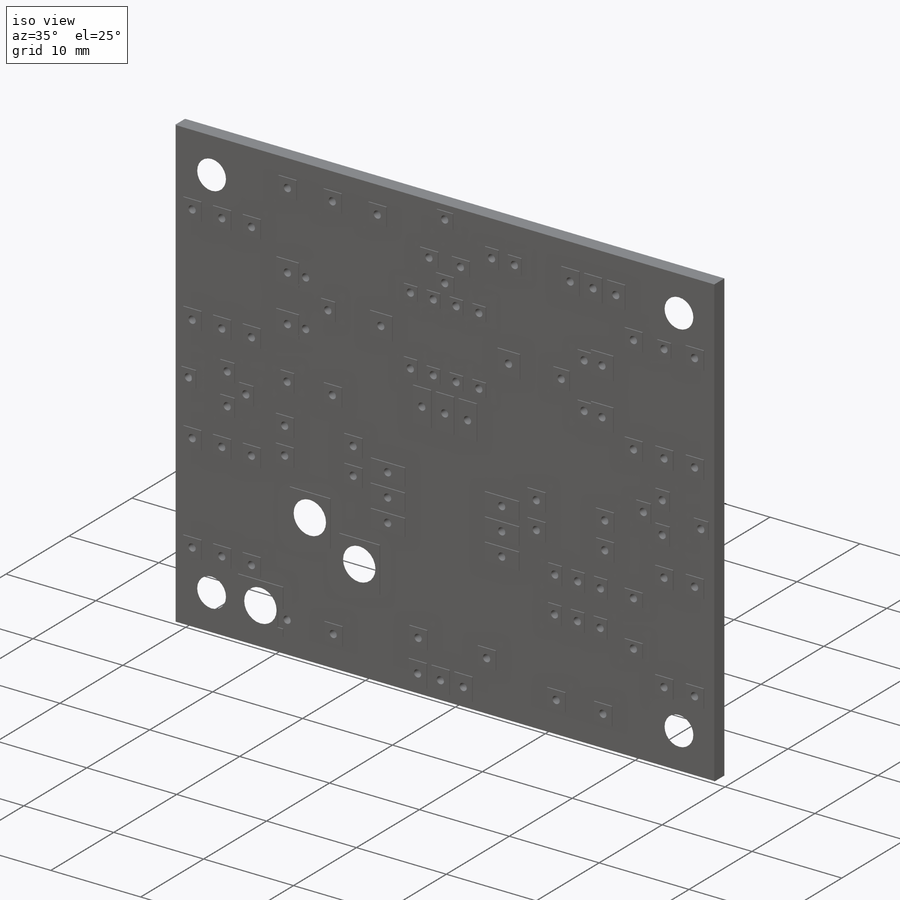
[diagram: iso view]
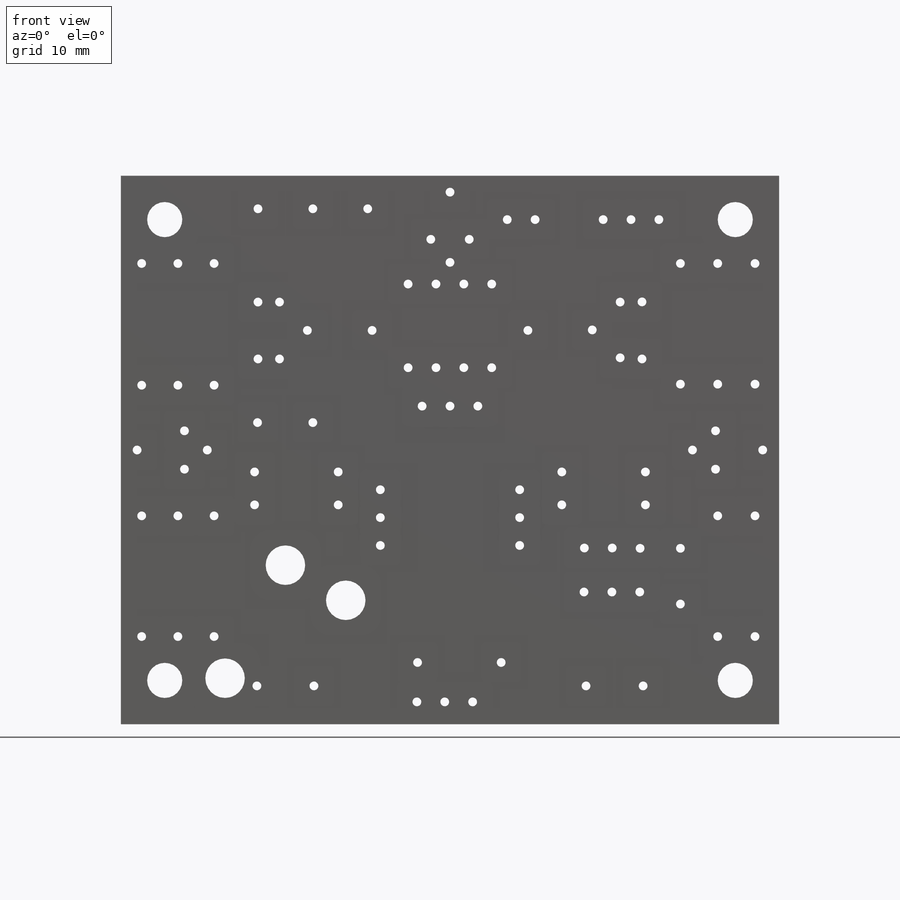
[diagram: front view]
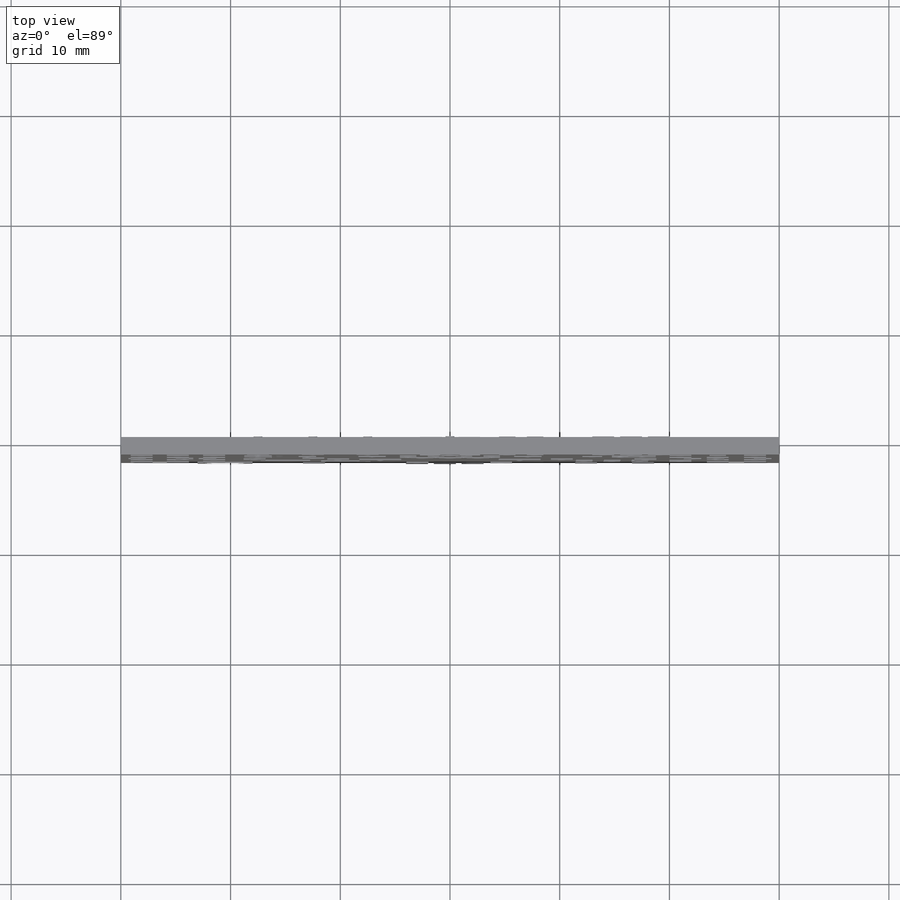
[diagram: top view]
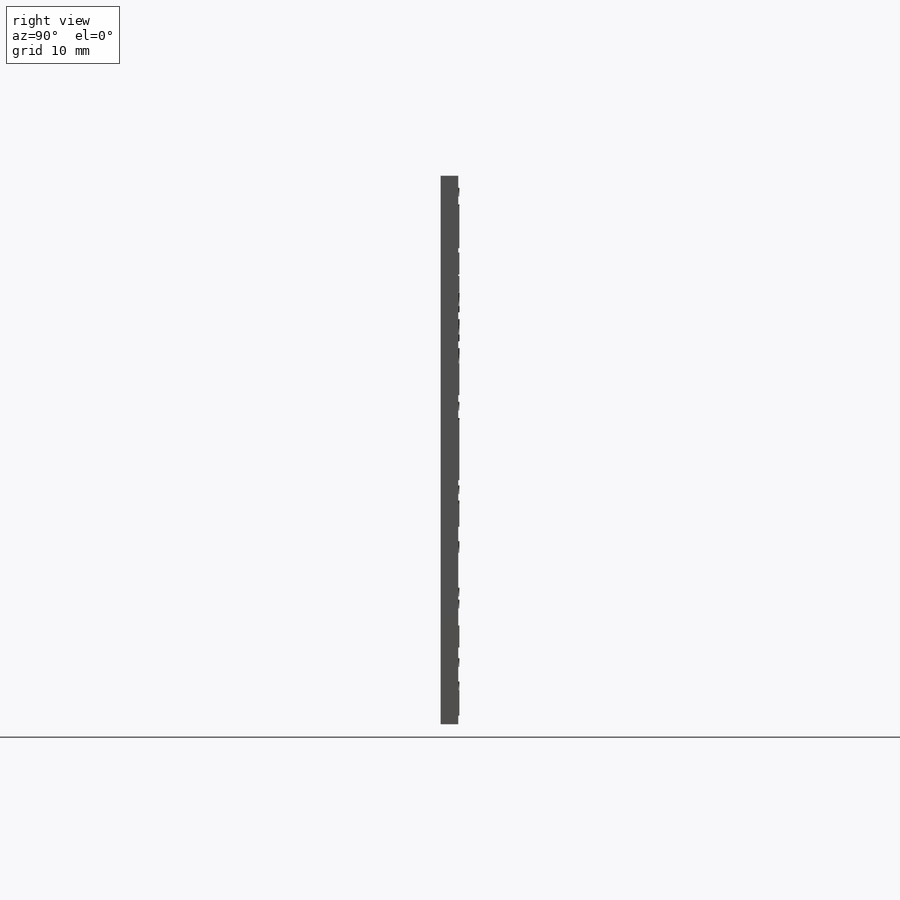
[diagram: right view]
SOLIDWORKS PART (.sldprt)
format: sldprt  version: not decoded by parser v0  size: 1,640,960 bytes
history: native  units: mm
features: sketch x6, cut_extrude x5, plane x3, material x1, extrude x1 (+8 scaffold rows collapsed)
feature tree (24):
  scaffold x8  (default folders/planes/origin — collapsed)
  material  "Matériau <non spécifié>"
  plane  "Plan de face"
  plane  "Plan de dessus"
  plane  "Plan de droite"
  sketch  "Esquisse1"  dims[D1=60.0mm D2=50.0mm]
  extrude  "Extrusion1"  Depth=1.7mm
  sketch  "Esquisse2"  dims[D1=1524.0mm]
  cut_extrude  "Extrusion4"  Depth=0.1mm
  sketch  "Esquisse5"  dims[c1.D1=0.8mm c1.D2=~0.891957mm c1.D3=~0.891957mm c2.D2=0.8mm]
  cut_extrude  "Extrusion2"  Depth=1.7mm
  sketch  "Esquisse7"  dims[D1=50.0mm]
  cut_extrude  "Extrusion6"  Depth=0.1mm
  sketch  "Esquisse8"  dims[D3=3.2mm D6=3.2mm D9=3.2mm D12=3.2mm D1=4.0mm D2=4.0mm D4=4.0mm D5=4.0mm D7=4.0mm D8=4.0mm D10=4.0mm D11=4.0mm]
  cut_extrude  "Enlèv. mat.-Extru.1"  [1 undecoded]
  sketch  "Esquisse9"  dims[D1=3.6mm D2=3.6mm D3=3.6mm]
  cut_extrude  "Enlèv. mat.-Extru.2"  [1 undecoded]
decode coverage: 10 of 12 modeling features carry decoded parameters
note: ~ marks probable driven/reference dimensions
note: 2 parameter values undecoded
note: suppression state not decoded; provenance and decode notes live in map.json
